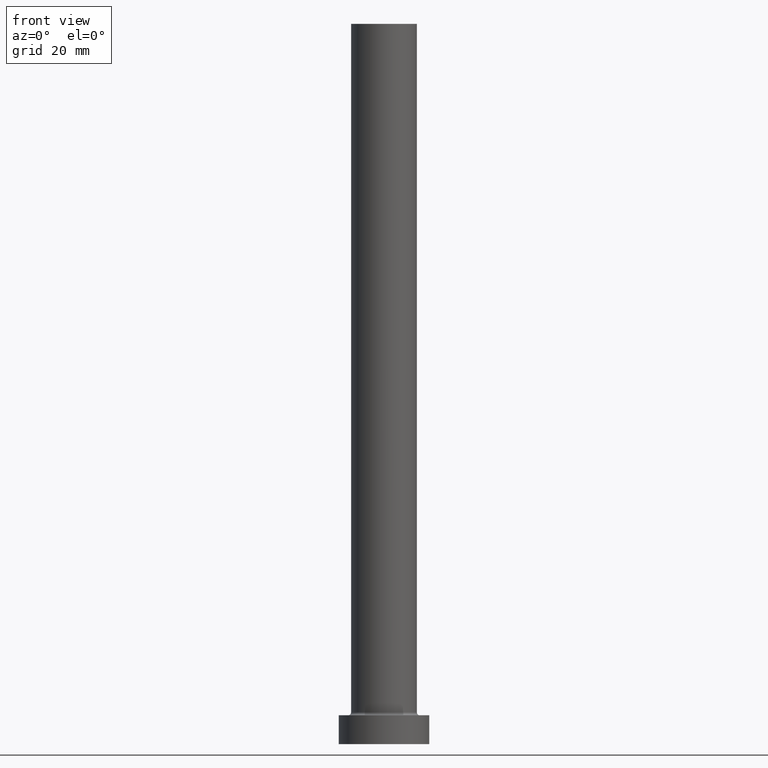
[diagram: clean part render]
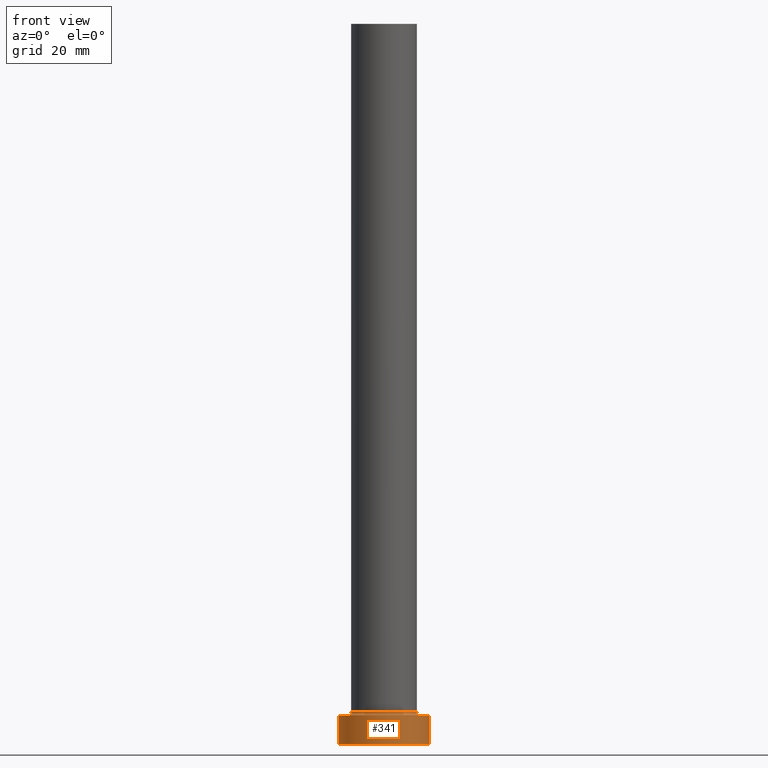
[diagram: same view with one face highlighted and labeled with its STEP entity id]
A machine part, front view. The second image highlights one B-rep face of the part: STEP entity #341.
In plain terms, the highlighted cylindrical surface (partial cylindrical patch) has radius 11 mm, axis along (-0, -0, -1).
Its self-contained STEP definition (entity closure, byte-faithful):
#2 = EDGE_CURVE ( 'NONE', #266, #155, #386, .T. ) ;
#49 = ORIENTED_EDGE ( 'NONE', *, *, #429, .T. ) ;
#54 = EDGE_CURVE ( 'NONE', #163, #155, #161, .T. ) ;
#55 = DIRECTION ( 'NONE',  ( 1.000000000000000000, 0.000000000000000000, 0.000000000000000000 ) ) ;
#62 = DIRECTION ( 'NONE',  ( -1.000000000000000000, 0.000000000000000000, 0.000000000000000000 ) ) ;
#64 = CIRCLE ( 'NONE', #180, 11.00000000000000000 ) ;
#91 = DIRECTION ( 'NONE',  ( 0.000000000000000000, 0.000000000000000000, 1.000000000000000000 ) ) ;
#92 = DIRECTION ( 'NONE',  ( -0.000000000000000000, -0.000000000000000000, -1.000000000000000000 ) ) ;
#128 = DIRECTION ( 'NONE',  ( 1.000000000000000000, 0.000000000000000000, 0.000000000000000000 ) ) ;
#132 = AXIS2_PLACEMENT_3D ( 'NONE', #414, #383, #62 ) ;
#150 = CARTESIAN_POINT ( 'NONE',  ( -11.00000000000000000, 0.000000000000000000, 0.000000000000000000 ) ) ;
#154 = VECTOR ( 'NONE', #410, 1000.000000000000000 ) ;
#155 = VERTEX_POINT ( 'NONE', #159 ) ;
#159 = CARTESIAN_POINT ( 'NONE',  ( 11.00000000000000000, 1.347111479062088405E-15, 0.000000000000000000 ) ) ;
#161 = LINE ( 'NONE', #301, #154 ) ;
#162 = CARTESIAN_POINT ( 'NONE',  ( 0.000000000000000000, 0.000000000000000000, 7.000000000000000000 ) ) ;
#163 = VERTEX_POINT ( 'NONE', #340 ) ;
#167 = DIRECTION ( 'NONE',  ( 0.000000000000000000, 0.000000000000000000, 1.000000000000000000 ) ) ;
#168 = CARTESIAN_POINT ( 'NONE',  ( -11.00000000000000000, 0.000000000000000000, 7.000000000000000000 ) ) ;
#180 = AXIS2_PLACEMENT_3D ( 'NONE', #162, #91, #55 ) ;
#183 = AXIS2_PLACEMENT_3D ( 'NONE', #345, #167, #128 ) ;
#193 = ORIENTED_EDGE ( 'NONE', *, *, #2, .T. ) ;
#258 = EDGE_LOOP ( 'NONE', ( #326, #298, #49, #193 ) ) ;
#266 = VERTEX_POINT ( 'NONE', #150 ) ;
#268 = FACE_OUTER_BOUND ( 'NONE', #258, .T. ) ;
#288 = CARTESIAN_POINT ( 'NONE',  ( -11.00000000000000000, 0.000000000000000000, 7.000000000000000000 ) ) ;
#290 = VECTOR ( 'NONE', #92, 1000.000000000000000 ) ;
#298 = ORIENTED_EDGE ( 'NONE', *, *, #449, .F. ) ;
#299 = VERTEX_POINT ( 'NONE', #288 ) ;
#301 = CARTESIAN_POINT ( 'NONE',  ( 11.00000000000000000, 1.347111479062088405E-15, 7.000000000000000000 ) ) ;
#326 = ORIENTED_EDGE ( 'NONE', *, *, #54, .F. ) ;
#340 = CARTESIAN_POINT ( 'NONE',  ( 11.00000000000000000, 1.347111479062088405E-15, 7.000000000000000000 ) ) ;
#341 = ADVANCED_FACE ( 'NONE', ( #268 ), #445, .T. ) ;
#345 = CARTESIAN_POINT ( 'NONE',  ( 0.000000000000000000, 0.000000000000000000, 0.000000000000000000 ) ) ;
#351 = LINE ( 'NONE', #168, #290 ) ;
#383 = DIRECTION ( 'NONE',  ( -0.000000000000000000, -0.000000000000000000, -1.000000000000000000 ) ) ;
#386 = CIRCLE ( 'NONE', #183, 11.00000000000000000 ) ;
#410 = DIRECTION ( 'NONE',  ( -0.000000000000000000, -0.000000000000000000, -1.000000000000000000 ) ) ;
#414 = CARTESIAN_POINT ( 'NONE',  ( 0.000000000000000000, 0.000000000000000000, 7.000000000000000000 ) ) ;
#429 = EDGE_CURVE ( 'NONE', #299, #266, #351, .T. ) ;
#445 = CYLINDRICAL_SURFACE ( 'NONE', #132, 11.00000000000000000 ) ;
#449 = EDGE_CURVE ( 'NONE', #299, #163, #64, .T. ) ;